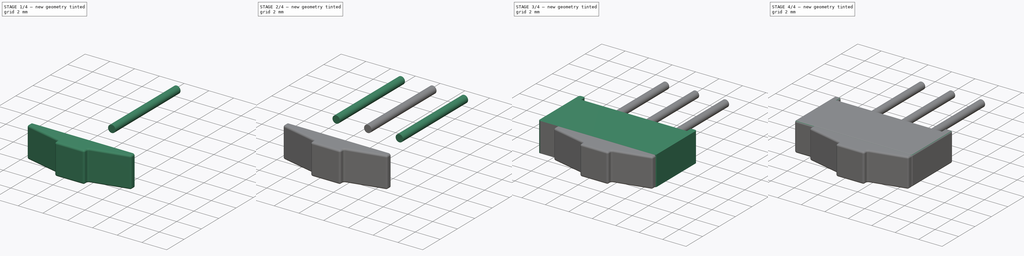
[diagram: build sequence overview — one tinted view per stage of 4, left to right]
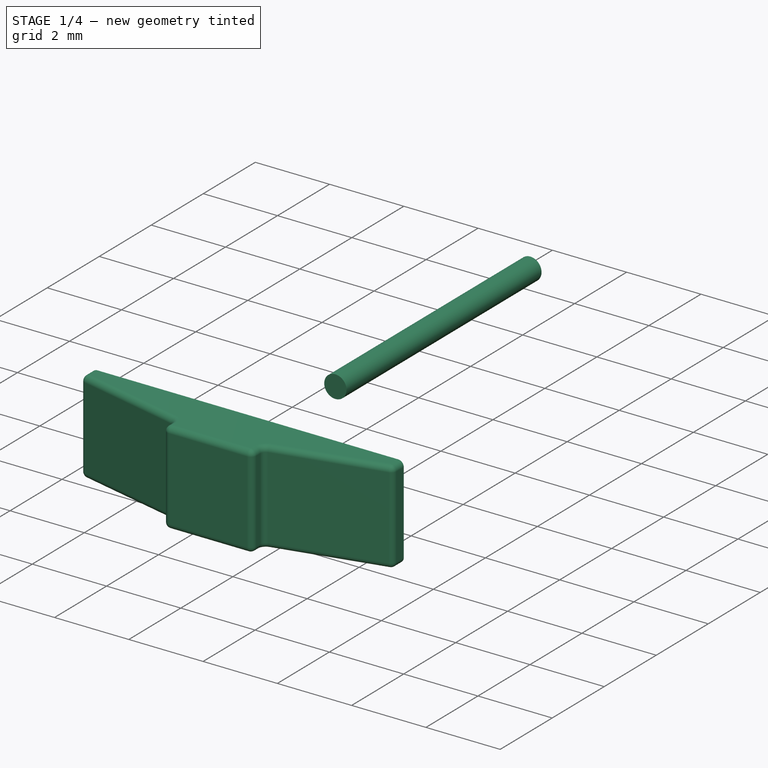
[diagram: stage 1 of 4 — iso view after this stage's code; geometry added in this stage tinted green]
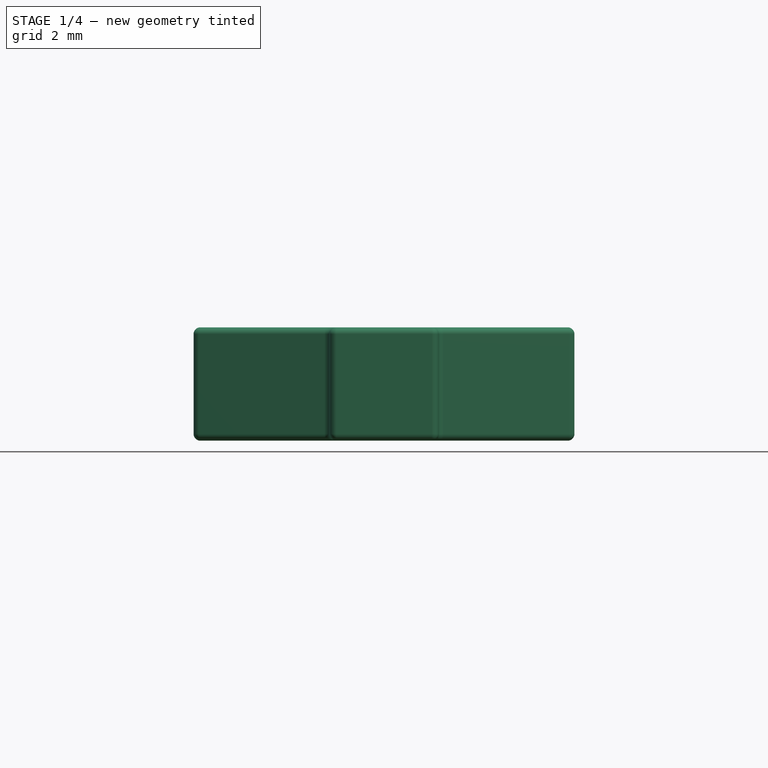
[diagram: stage 1 of 4 — front view after this stage's code; geometry added in this stage tinted green]
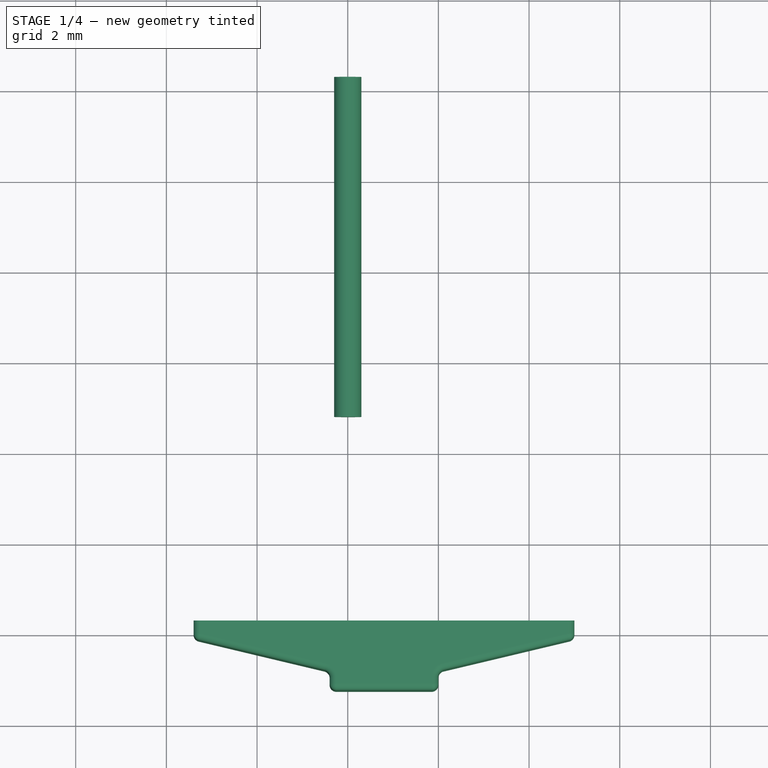
[diagram: stage 1 of 4 — top view after this stage's code; geometry added in this stage tinted green]
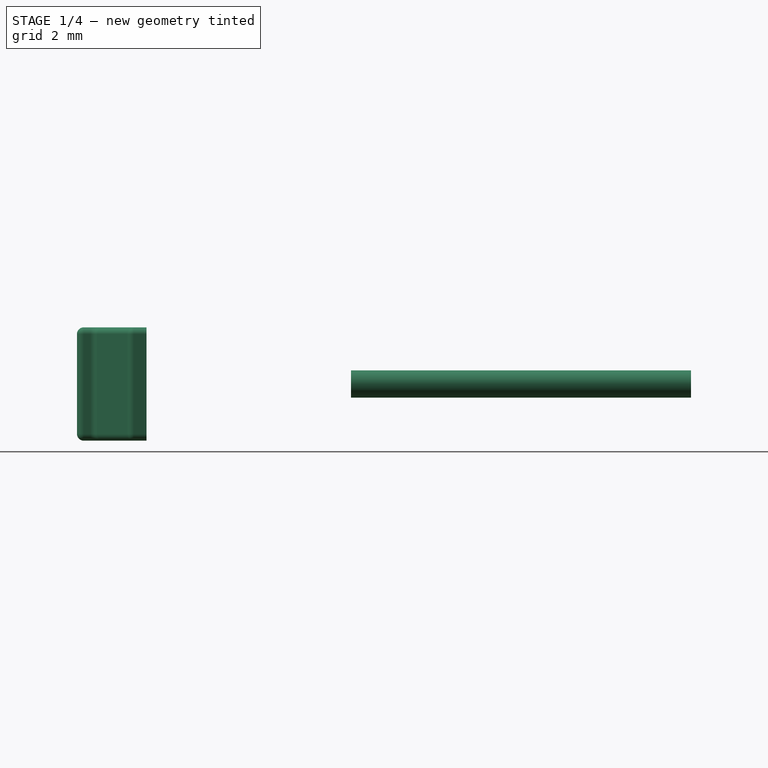
[diagram: stage 1 of 4 — right view after this stage's code; geometry added in this stage tinted green]
FCSTD DOCUMENT  (FreeCAD 0.16R6707 (Git))
Label: slide-sw-spdt
License: All rights reserved
LicenseURL: http://en.wikipedia.org/wiki/All_rights_reserved
objects: Sketcher::SketchObject×5, Part::FeaturePython×5, Part::Fillet×4, PartDesign::Pad×3, Part::Sweep×1, Part::MultiFuse×1, App::DocumentObjectGroup×1
note: 22 computed .brp shape members not serialized (recipe doc carries the construction recipe); baked Part::Feature solids carry a one-line shape summary decoded from their .brp

FEATURE [Sketcher::SketchObject] Sketch002  label="pin-path-sketch"
  Placement = pos=(0,0,0) rot=(0.57735,0.57735,0.57735;2.0944rad)
  sketch-geometry (1):
    g0: LineSegment StartX=-1.2 StartY=1.25 StartZ=0 EndX=6.3 EndY=1.25 EndZ=0
  constraints (4):
    c: Horizontal(g0)
    c: DistanceX(g0,g0) = 7.5
    c: DistanceX(g0,g-1) = 1.2
    c: DistanceY(g-1,g0) = 1.25
FEATURE [Sketcher::SketchObject] Sketch003  label="pin-section-sketch"
  Placement = pos=(7.4335e-08,-1.2,1.25) rot=(1,0,0;1.5708rad)
  sketch-geometry (1):
    g0: Circle CenterX=0 CenterY=0 CenterZ=0 NormalX=0 NormalY=0 NormalZ=1 Radius=0.3
  constraints (2):
    c: Coincident(g0,g-1)
    c: Radius(g0) = 0.3
FEATURE [Part::Sweep] Sweep  label="central-pin"
  Frenet = false
  Sections = -> [Sketch003]
  Solid = true
  Spine = -> Sketch002
  Transition = 1
FEATURE [Sketcher::SketchObject] Sketch004  label="head-sketch"
  sketch-geometry (8):
    g0: LineSegment StartX=-4.2 StartY=0 StartZ=0 EndX=4.2 EndY=0 EndZ=0
    g1: LineSegment StartX=4.2 StartY=0 StartZ=0 EndX=4.2 EndY=-0.4 EndZ=0
    g2: LineSegment StartX=4.2 StartY=-0.4 StartZ=0 EndX=1.2 EndY=-1.1147 EndZ=0
    g3: LineSegment StartX=1.2 StartY=-1.1147 StartZ=0 EndX=1.2 EndY=-1.5347 EndZ=0
    g4: LineSegment StartX=1.2 StartY=-1.5347 StartZ=0 EndX=-1.2 EndY=-1.5347 EndZ=0
    g5: LineSegment StartX=-1.2 StartY=-1.5347 StartZ=0 EndX=-1.2 EndY=-1.1147 EndZ=0
    g6: LineSegment StartX=-1.2 StartY=-1.1147 StartZ=0 EndX=-4.2 EndY=-0.4 EndZ=0
    g7: LineSegment StartX=-4.2 StartY=-0.4 StartZ=0 EndX=-4.2 EndY=0 EndZ=0
  constraints (23):
    c: Horizontal(g0)
    c: Coincident(g0,g1)
    c: Coincident(g1,g2)
    c: Coincident(g2,g3)
    c: Vertical(g3)
    c: Coincident(g3,g4)
    c: Horizontal(g4)
    c: Coincident(g4,g5)
    c: Vertical(g5)
    c: Coincident(g5,g6)
    c: Coincident(g6,g7)
    c: Coincident(g7,g0)
    c: Vertical(g7)
    c: DistanceX(g0,g0) = 8.4
    c: Vertical(g1)
    c: Angle(g6,g0) = 0.233874
    c: DistanceY(g7,g7) = 0.4
    c: DistanceX(g4,g4) = 2.4
    c: DistanceY(g5,g5) = 0.42
    c: Symmetric(g0,g0,g-2)
    c: Symmetric(g5,g2,g-2)
    c: Symmetric(g1,g6,g-2)
    c: PointOnObject(g-1,g0)
FEATURE [PartDesign::Pad] Pad002  label="head-1"
  Length = 2.5
  Length2 = 100
  Sketch = -> Sketch004
  Type = 0
FEATURE [Part::Fillet] Fillet003  label="head-2"
  Base = -> Pad002
  Edges = 20 edges r=0.15: [Edge5,Edge6,Edge7,Edge8,Edge9,Edge10,Edge11,Edge12,Edge13,Edge14,Edge15,Edge16,Edge17,Edge18,Edge19,Edge20,Edge21,Edge22,Edge23,Edge24]
  Placement = pos=(0.8,-5.71,6.557e-09) rot=(0,0,1;0rad)
FEATURE [App::DocumentObjectGroup] Group  label="src"
  Group = -> [Pad,Pad001,Fillet002,Sketch002,Fusion,Fillet003]
FEATURE [Part::FeaturePython] Clone004  label="head"  # Draft clone (typed FeaturePython)
  Objects = -> [Fillet003]
  Placement = pos=(0.8,-5.71,6.557e-09) rot=(0,0,1;0rad)
  Scale = (1,1,1)
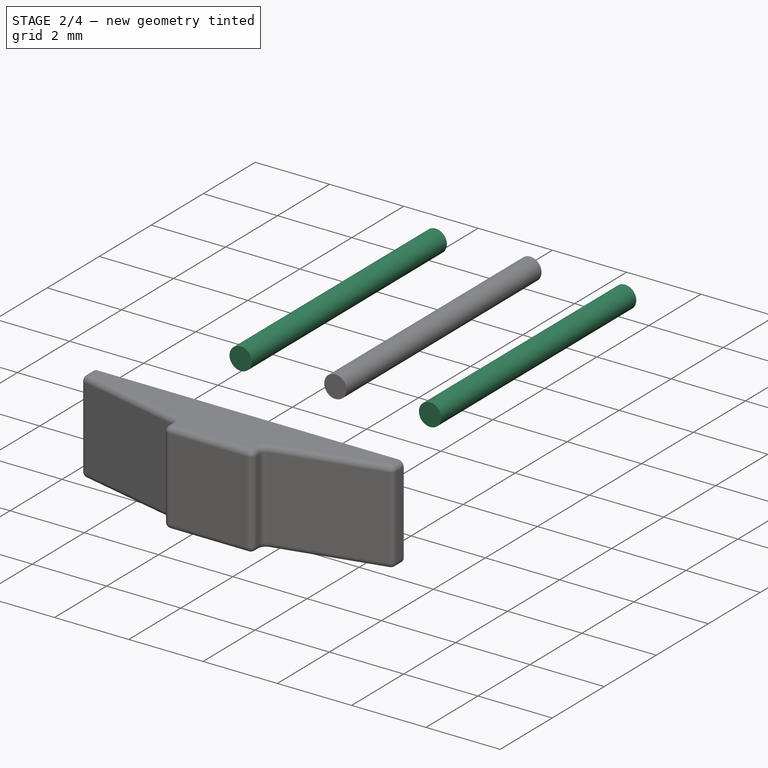
[diagram: stage 2 of 4 — iso view after this stage's code; geometry added in this stage tinted green]
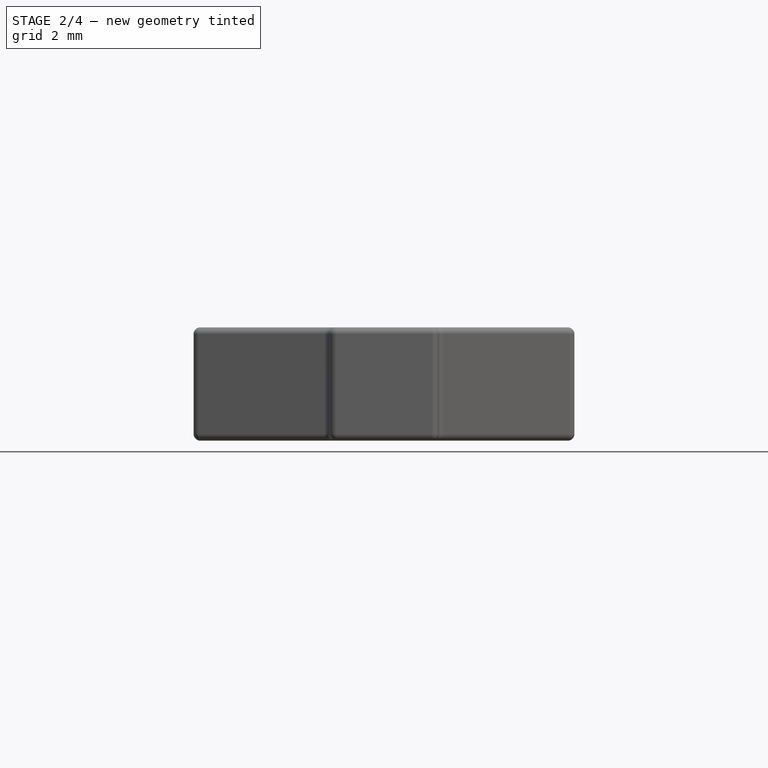
[diagram: stage 2 of 4 — front view after this stage's code; geometry added in this stage tinted green]
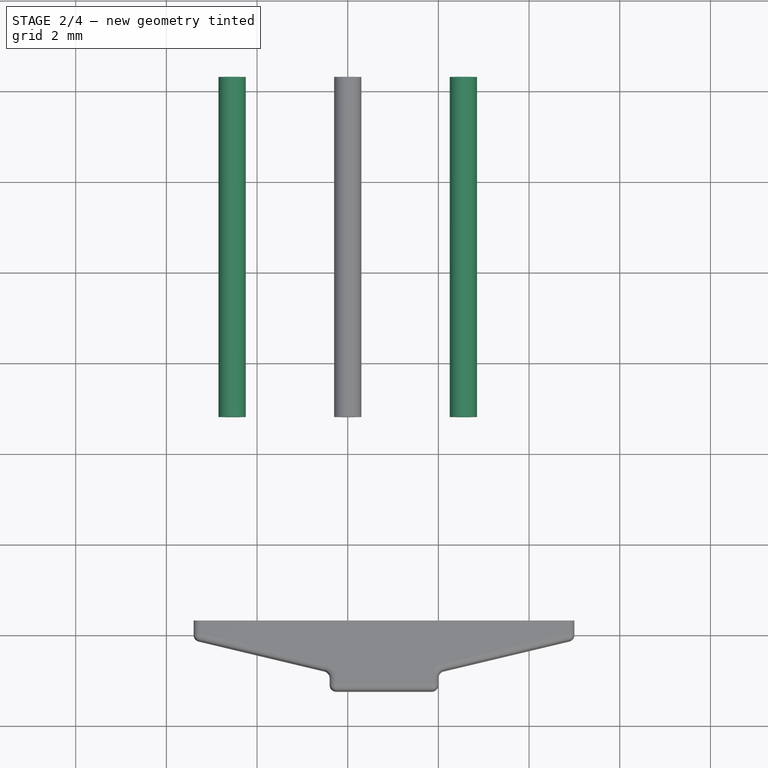
[diagram: stage 2 of 4 — top view after this stage's code; geometry added in this stage tinted green]
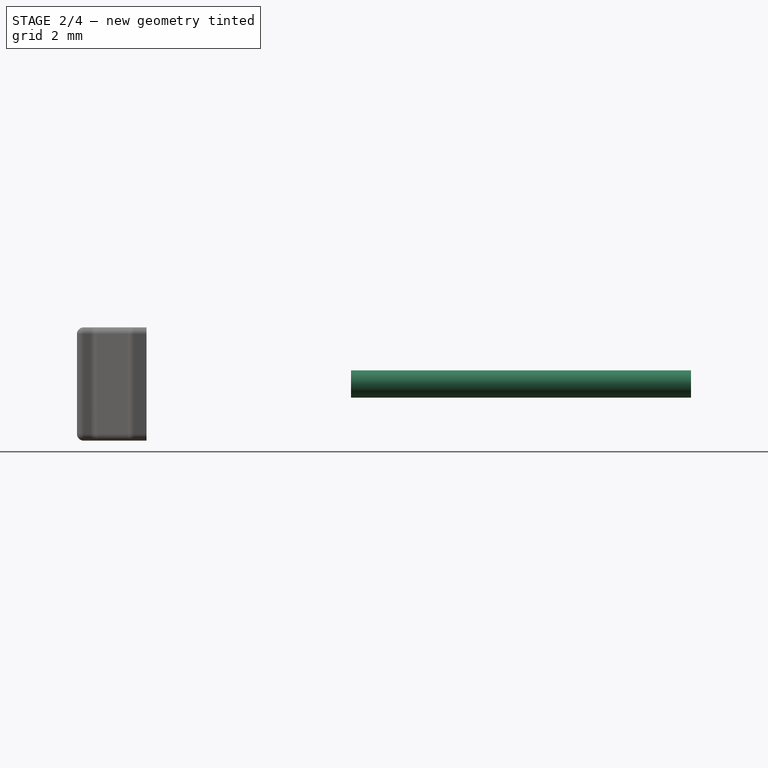
[diagram: stage 2 of 4 — right view after this stage's code; geometry added in this stage tinted green]
FEATURE [Part::FeaturePython] Clone001  label="right-pin"  # Draft clone (typed FeaturePython)
  Objects = -> [Sweep]
  Placement = pos=(-2.55,0,-2.1856e-07) rot=(0,0,1;0rad)
  Scale = (1,1,1)
FEATURE [Part::FeaturePython] Clone002  label="left-pin"  # Draft clone (typed FeaturePython)
  Objects = -> [Sweep]
  Placement = pos=(2.55,0,-2.1856e-07) rot=(0,0,1;0rad)
  Scale = (1,1,1)
FEATURE [Part::MultiFuse] Fusion  label="pins-src"
  Shapes = -> [Sweep,Clone002,Clone001]
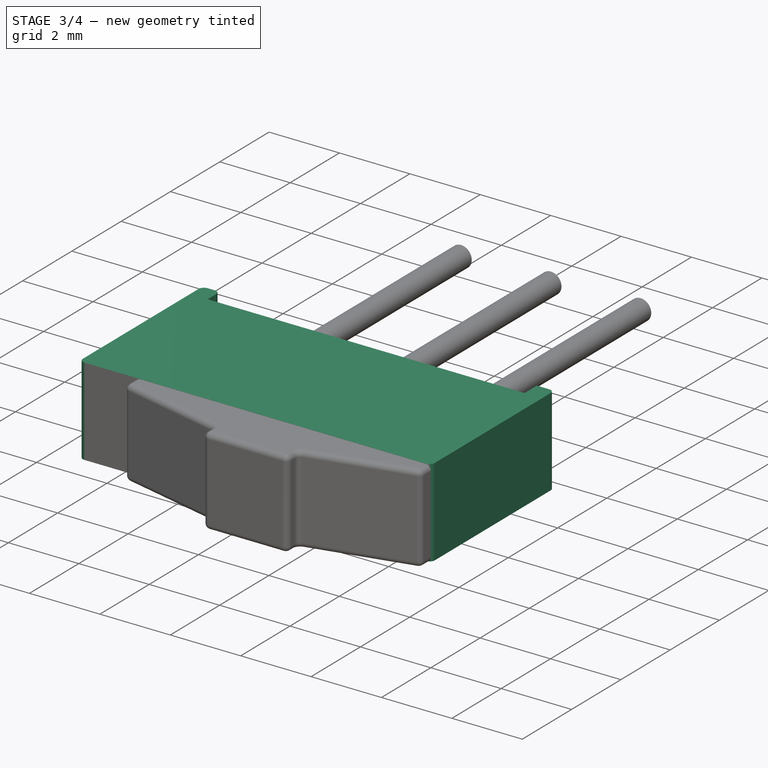
[diagram: stage 3 of 4 — iso view after this stage's code; geometry added in this stage tinted green]
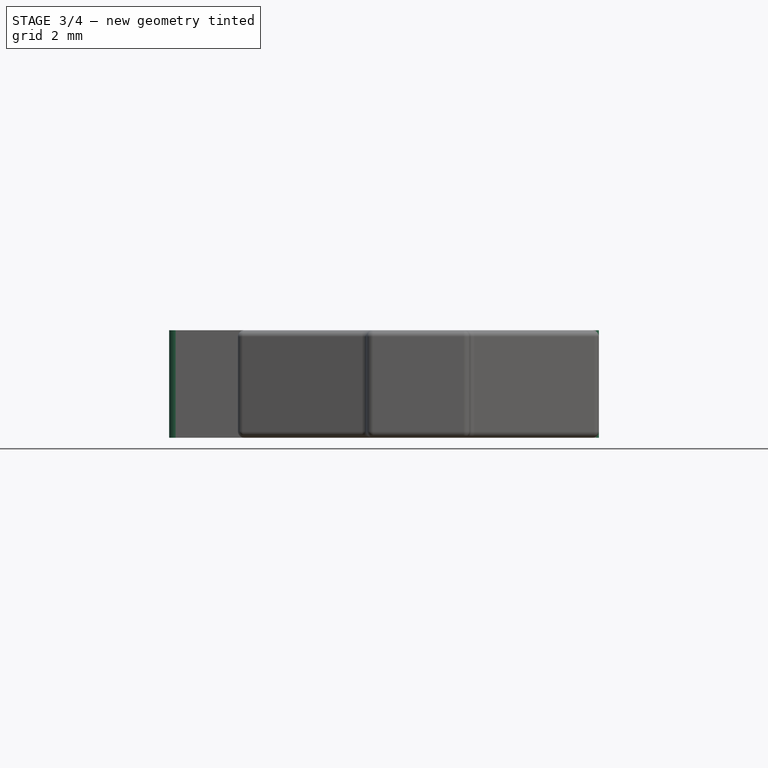
[diagram: stage 3 of 4 — front view after this stage's code; geometry added in this stage tinted green]
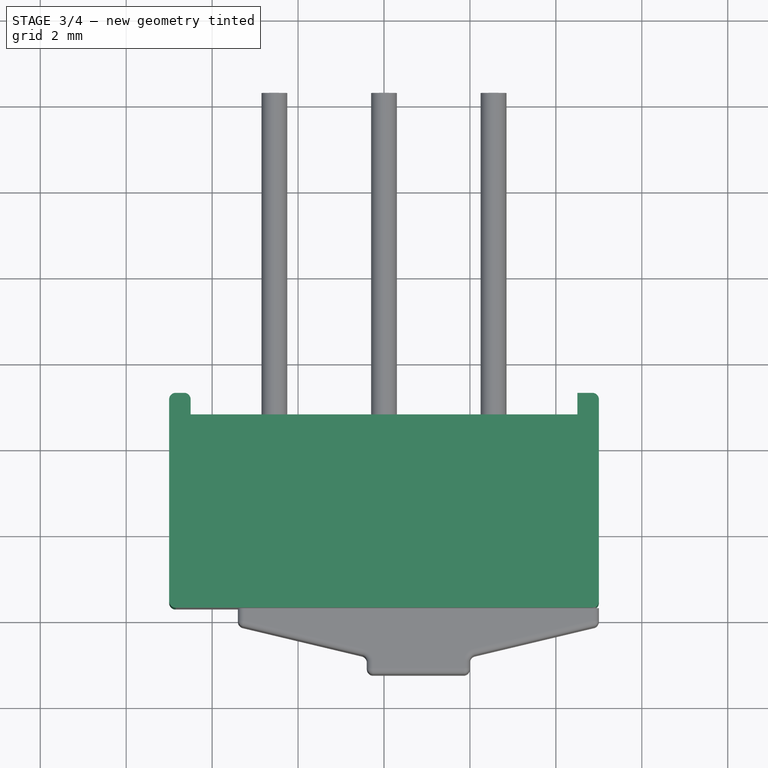
[diagram: stage 3 of 4 — top view after this stage's code; geometry added in this stage tinted green]
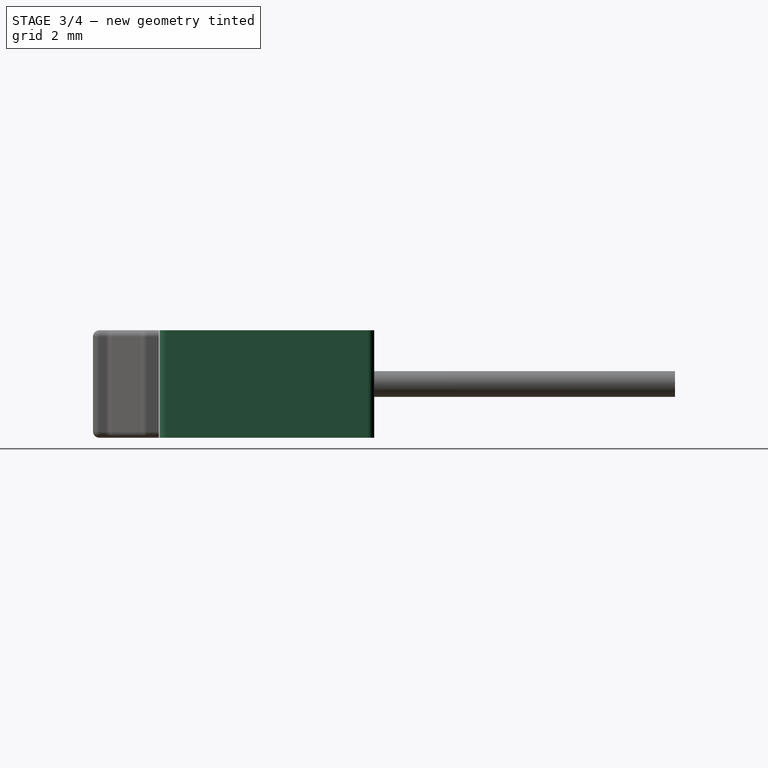
[diagram: stage 3 of 4 — right view after this stage's code; geometry added in this stage tinted green]
FEATURE [Sketcher::SketchObject] Sketch  label="body-1-sketch"
  sketch-geometry (24):
    g0: LineSegment StartX=4.5 StartY=-1.2 StartZ=0 EndX=-4.5 EndY=-1.2 EndZ=0
    g1: LineSegment StartX=-4.5 StartY=-1.2 StartZ=0 EndX=-4.5 EndY=-0.85 EndZ=0
    g2: LineSegment StartX=-4.85 StartY=-0.7 StartZ=0 EndX=-4.65 EndY=-0.7 EndZ=0
    g3: LineSegment StartX=-5 StartY=-0.85 StartZ=0 EndX=-5 EndY=-5.55 EndZ=0
    g4: LineSegment StartX=-4.85 StartY=-5.7 StartZ=0 EndX=4.85 EndY=-5.7 EndZ=0
    g5: LineSegment [constr] StartX=-4.65 StartY=-0.7 StartZ=0 EndX=-4.65 EndY=-0.85 EndZ=0
    g6: LineSegment [constr] StartX=-4.65 StartY=-0.85 StartZ=0 EndX=-4.5 EndY=-0.85 EndZ=0
    g7: LineSegment [constr] StartX=-4.85 StartY=-0.7 StartZ=0 EndX=-4.85 EndY=-0.85 EndZ=0
    g8: LineSegment [constr] StartX=-4.85 StartY=-0.85 StartZ=0 EndX=-5 EndY=-0.85 EndZ=0
    g9: LineSegment [constr] StartX=-5 StartY=-5.55 StartZ=0 EndX=-4.85 EndY=-5.55 EndZ=0
    g10: LineSegment [constr] StartX=-4.85 StartY=-5.55 StartZ=0 EndX=-4.85 EndY=-5.7 EndZ=0
    g11: ArcOfCircle CenterX=-4.65 CenterY=-0.85 CenterZ=0 NormalX=0 NormalY=0 NormalZ=1 Radius=0.15 StartAngle=0 EndAngle=1.5708
    g12: ArcOfCircle CenterX=-4.85 CenterY=-0.85 CenterZ=0 NormalX=0 NormalY=0 NormalZ=1 Radius=0.15 StartAngle=1.5708 EndAngle=3.14159
    g13: ArcOfCircle CenterX=-4.85 CenterY=-5.55 CenterZ=0 NormalX=0 NormalY=0 NormalZ=1 Radius=0.15 StartAngle=3.14159 EndAngle=4.71239
    g14: LineSegment StartX=4.5 StartY=-1.2 StartZ=0 EndX=4.5 EndY=-0.7 EndZ=0
    g15: LineSegment StartX=4.5 StartY=-0.7 StartZ=0 EndX=4.85 EndY=-0.7 EndZ=0
    g16: LineSegment [constr] StartX=4.85 StartY=-0.7 StartZ=0 EndX=4.85 EndY=-0.85 EndZ=0
    g17: LineSegment [constr] StartX=4.85 StartY=-0.85 StartZ=0 EndX=5 EndY=-0.85 EndZ=0
    g18: LineSegment StartX=5 StartY=-0.85 StartZ=0 EndX=5 EndY=-5.55 EndZ=0
    g19: LineSegment [constr] StartX=5 StartY=-5.55 StartZ=0 EndX=4.85 EndY=-5.55 EndZ=0
    g20: LineSegment [constr] StartX=4.85 StartY=-5.55 StartZ=0 EndX=4.85 EndY=-5.7 EndZ=0
    g21: ArcOfCircle CenterX=4.85 CenterY=-0.85 CenterZ=0 NormalX=0 NormalY=0 NormalZ=1 Radius=0.15 StartAngle=0 EndAngle=1.5708
    g22: ArcOfCircle CenterX=4.85 CenterY=-5.55 CenterZ=0 NormalX=0 NormalY=0 NormalZ=1 Radius=0.15 StartAngle=4.71239 EndAngle=6.28319
    g23: LineSegment [constr] StartX=0 StartY=0 StartZ=0 EndX=0 EndY=-1.2 EndZ=0
  constraints (67):
    c: Horizontal(g0)
    c: Coincident(g0,g1)
    c: Vertical(g1)
    c: Horizontal(g2)
    c: Vertical(g3)
    c: Horizontal(g4)
    c: Coincident(g2,g5)
    c: Vertical(g5)
    c: Coincident(g5,g6)
    c: Coincident(g6,g1)
    c: Horizontal(g6)
    c: Coincident(g2,g7)
    c: Vertical(g7)
    c: Coincident(g7,g8)
    c: Coincident(g8,g3)
    c: Horizontal(g8)
    c: Coincident(g3,g9)
    c: Horizontal(g9)
    c: Coincident(g9,g10)
    c: Vertical(g10)
    c: Coincident(g4,g10)
    c: Coincident(g11,g5)
    c: Coincident(g11,g1)
    c: Coincident(g11,g2)
    c: Radius(g11) = 0.15
    c: PointOnObject(g7,g6)
    c: Coincident(g12,g7)
    c: Coincident(g12,g3)
    c: Coincident(g12,g2)
    c: DistanceX(g3,g1) = 0.5
    c: Coincident(g13,g9)
    c: Coincident(g13,g4)
    c: Coincident(g13,g3)
    c: PointOnObject(g9,g7)
    c: DistanceY(g4,g2) = 5
    c: Symmetric(g0,g0,g-2)
    c: Coincident(g0,g14)
    c: Vertical(g14)
    c: Coincident(g14,g15)
    c: Horizontal(g15)
    c: Coincident(g15,g16)
    c: Vertical(g16)
    c: Coincident(g16,g17)
    c: Horizontal(g17)
    c: Coincident(g17,g18)
    c: Vertical(g18)
    c: Coincident(g18,g19)
    c: Horizontal(g19)
    c: Coincident(g19,g20)
    c: Coincident(g4,g20)
    c: Vertical(g20)
    c: DistanceY(g0,g2) = 0.5
    c: Coincident(g21,g16)
    c: Coincident(g21,g15)
    c: Coincident(g21,g17)
    c: Symmetric(g16,g7,g-2)
    c: DistanceX(g3,g17) = 10
    c: Coincident(g22,g19)
    c: Coincident(g22,g18)
    c: Coincident(g22,g4)
    c: Symmetric(g15,g2,g-2)
    c: Symmetric(g19,g9,g-2)
    c: Vertical(g23)
    c: PointOnObject(g23,g0)
    c: PointOnObject(g23,g-2)
    c: Coincident(g23,g-1)
    c: DistanceY(g23,g23) = 1.2
FEATURE [PartDesign::Pad] Pad  label="body-1"
  Length = 2.5
  Length2 = 100
  Sketch = -> Sketch
  Type = 0
FEATURE [Sketcher::SketchObject] Sketch001
  Placement = pos=(0,-1.2,0) rot=(0,0.707107,0.707107;3.14159rad)
  Support = -> Pad [Face1]
  sketch-geometry (4):
    g0: Circle CenterX=-2.55 CenterY=1.25 CenterZ=0 NormalX=0 NormalY=0 NormalZ=1 Radius=0.05
    g1: LineSegment [constr] StartX=-2.55 StartY=1.25 StartZ=0 EndX=2.55 EndY=1.25 EndZ=0
    g2: Circle CenterX=2.55 CenterY=1.25 CenterZ=0 NormalX=0 NormalY=0 NormalZ=1 Radius=0.05
    g3: Circle CenterX=0 CenterY=1.25 CenterZ=0 NormalX=0 NormalY=0 NormalZ=1 Radius=0.05
  constraints (11):
    c: Horizontal(g1)
    c: Symmetric(g1,g1,g-2)
    c: Coincident(g0,g1)
    c: Radius(g0) = 0.05
    c: Coincident(g2,g1)
    c: Equal(g2,g0)
    c: DistanceX(g1,g1) = 5.1
    c: PointOnObject(g3,g1)
    c: PointOnObject(g3,g-2)
    c: Equal(g3,g2)
    c: DistanceY(g-1,g3) = 1.25
FEATURE [PartDesign::Pad] Pad001  label="body-2"
  Length = 0.01
  Length2 = 100
  Sketch = -> Sketch001
  Type = 0
FEATURE [Part::FeaturePython] Clone003  label="pins"  # Draft clone (typed FeaturePython)
  Objects = -> [Fusion]
  Scale = (1,1,1)
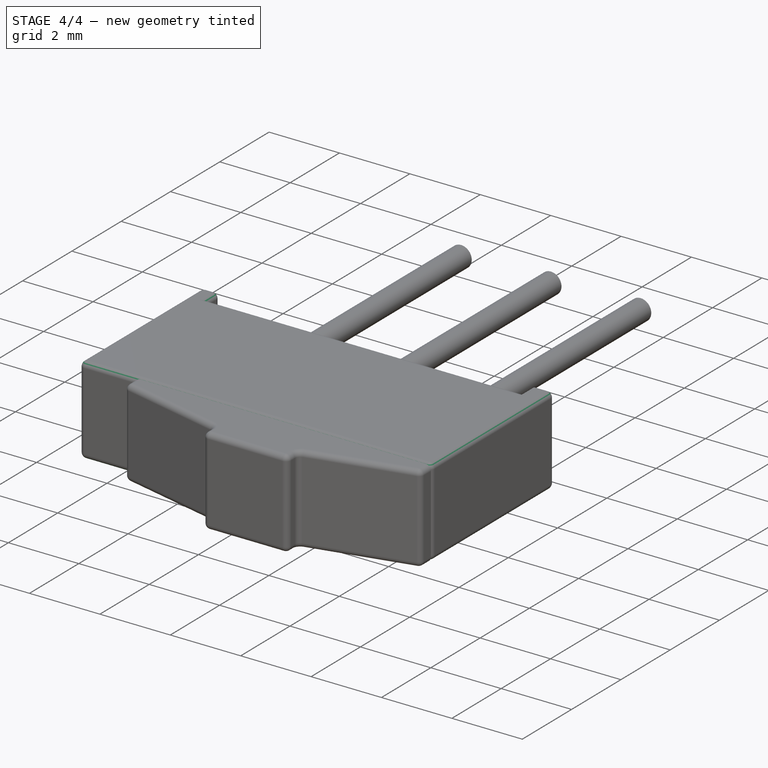
[diagram: stage 4 of 4 — iso view after this stage's code; geometry added in this stage tinted green]
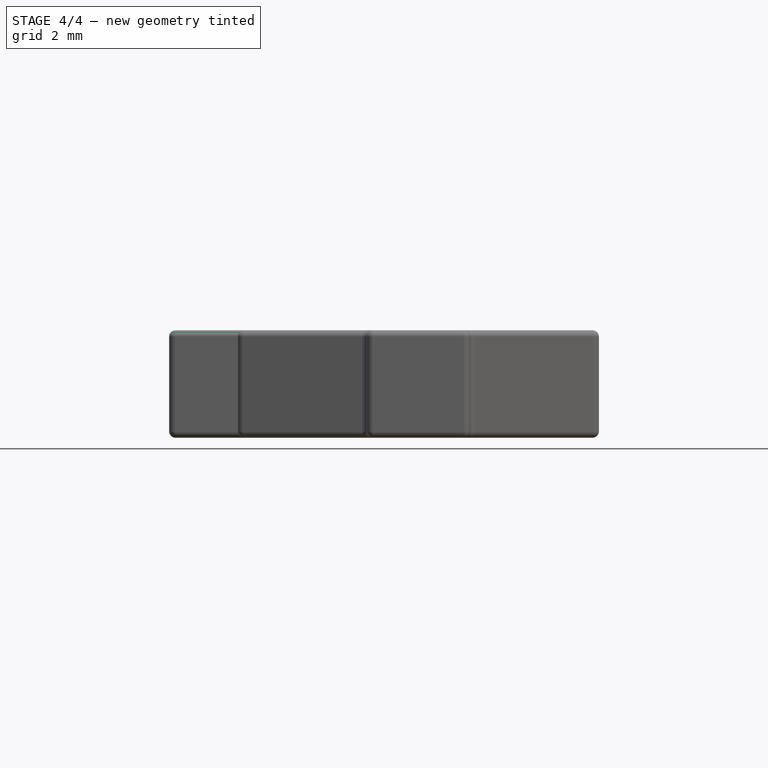
[diagram: stage 4 of 4 — front view after this stage's code; geometry added in this stage tinted green]
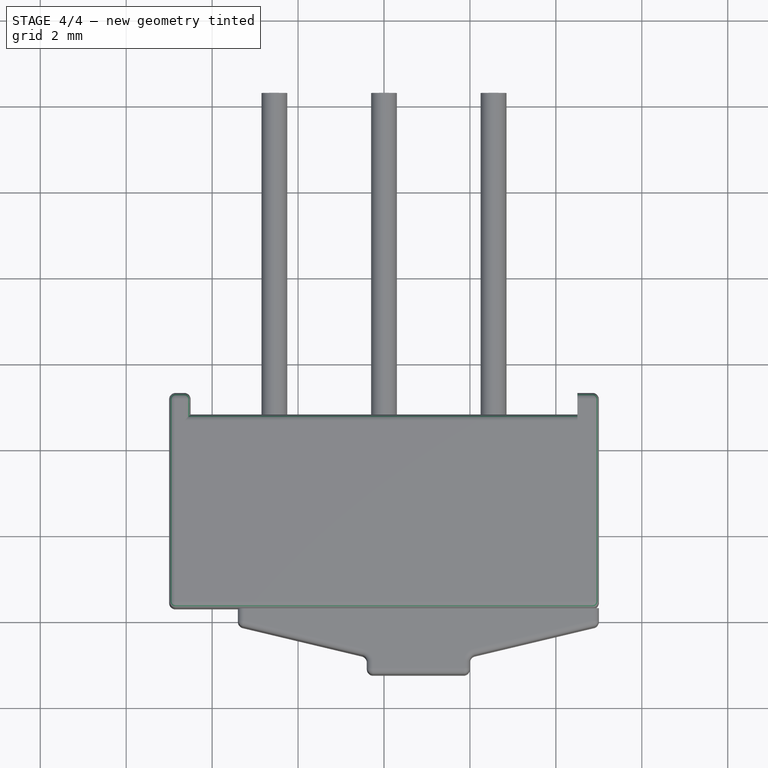
[diagram: stage 4 of 4 — top view after this stage's code; geometry added in this stage tinted green]
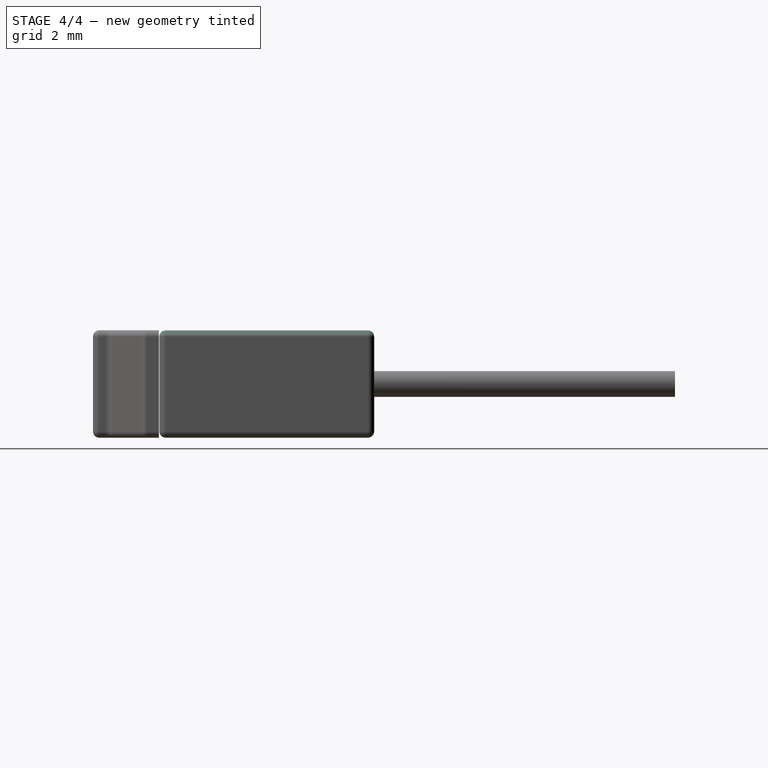
[diagram: stage 4 of 4 — right view after this stage's code; geometry added in this stage tinted green]
FEATURE [Part::Fillet] Fillet
  Base = -> Pad001
  Edges = 1 edges r=0.15: [Edge32]
FEATURE [Part::Fillet] Fillet001
  Base = -> Fillet
  Edges = 1 edges r=0.15: [Edge20]
FEATURE [Part::Fillet] Fillet002  label="body-final"
  Base = -> Fillet001
  Edges = 2 edges r=0.15: [Edge14,Edge21]
FEATURE [Part::FeaturePython] Clone  label="body"  # Draft clone (typed FeaturePython)
  Objects = -> [Fillet002]
  Scale = (1,1,1)
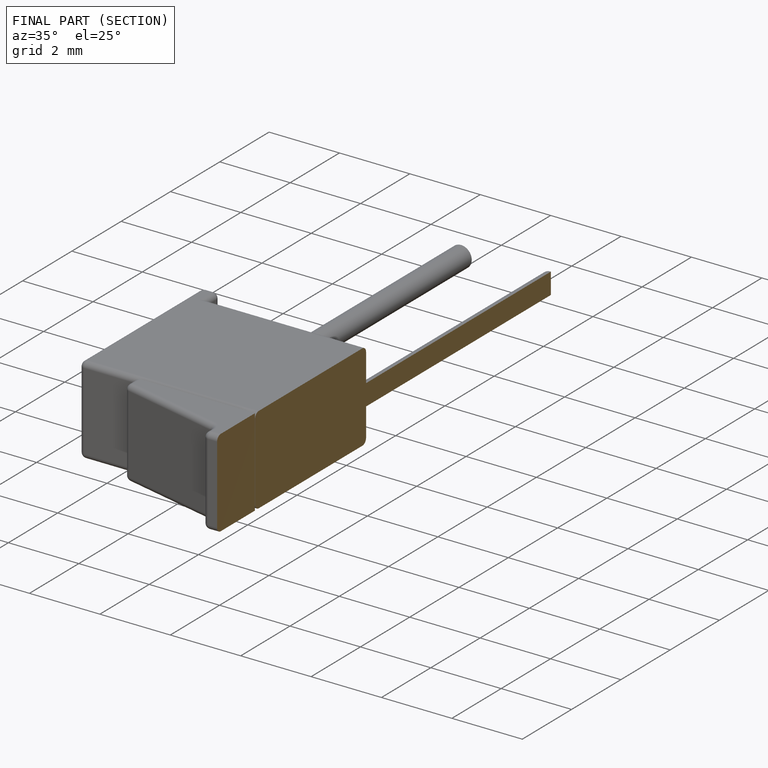
[diagram: finished part — half-section view (interior)]
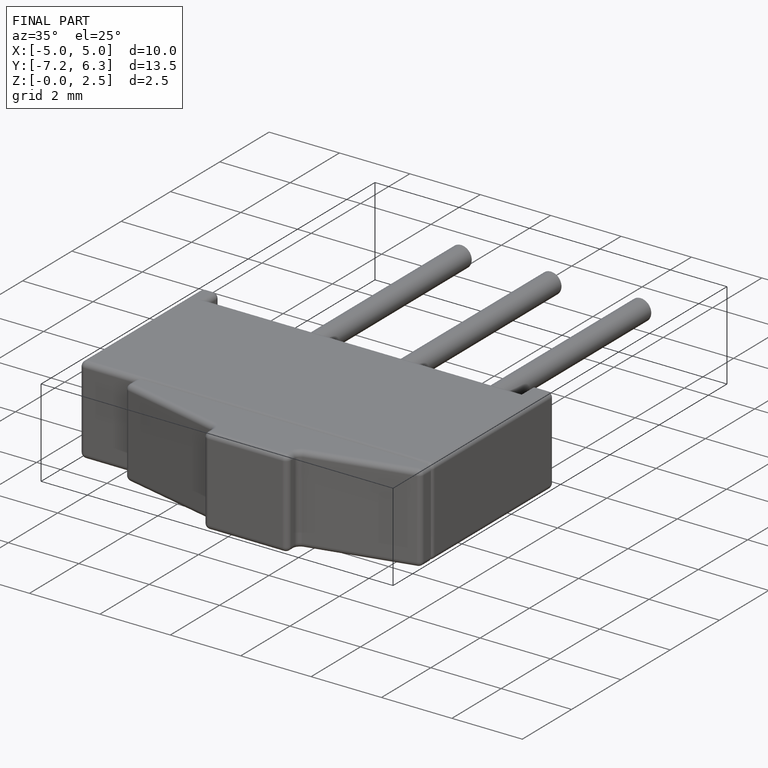
[diagram: finished part — iso view with bounding-box wireframe]
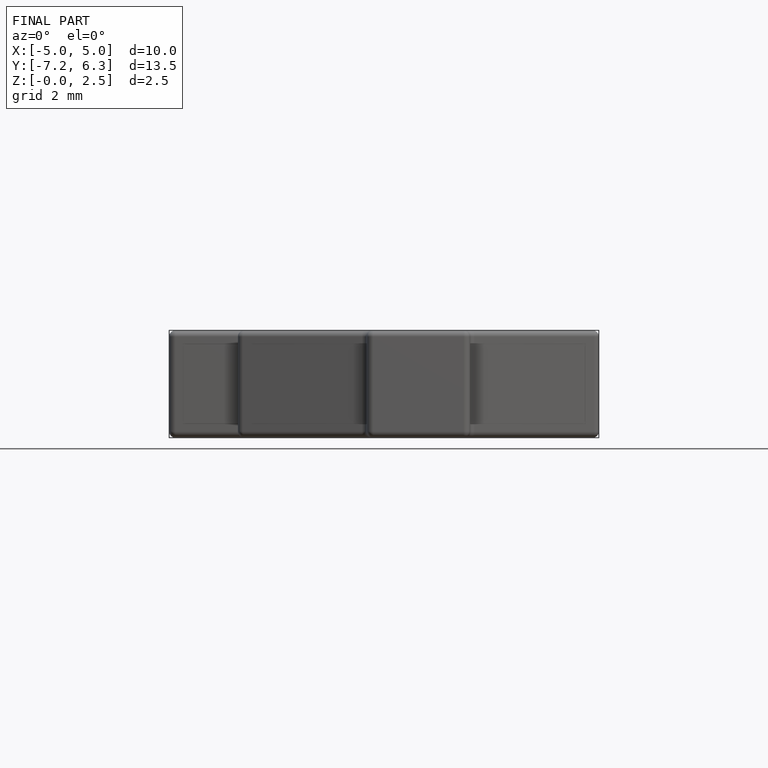
[diagram: finished part — front view with bounding-box wireframe]
